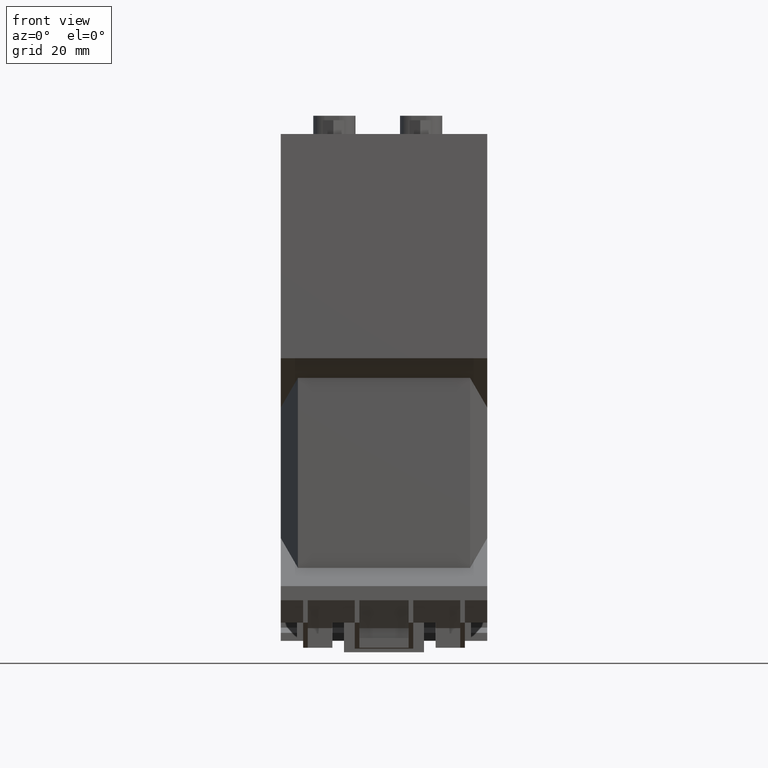
[diagram: clean part render]
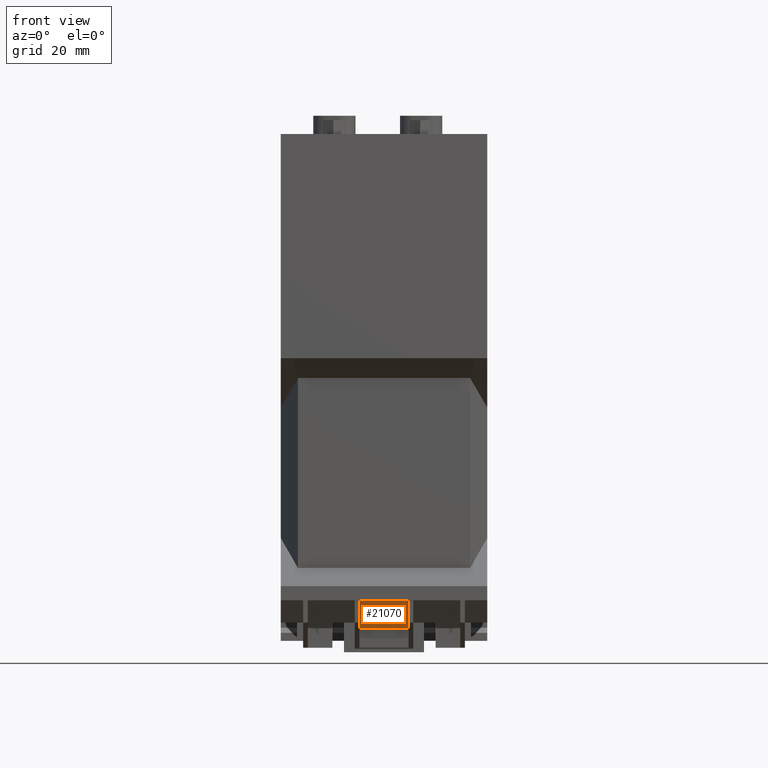
[diagram: same view with one face highlighted and labeled with its STEP entity id]
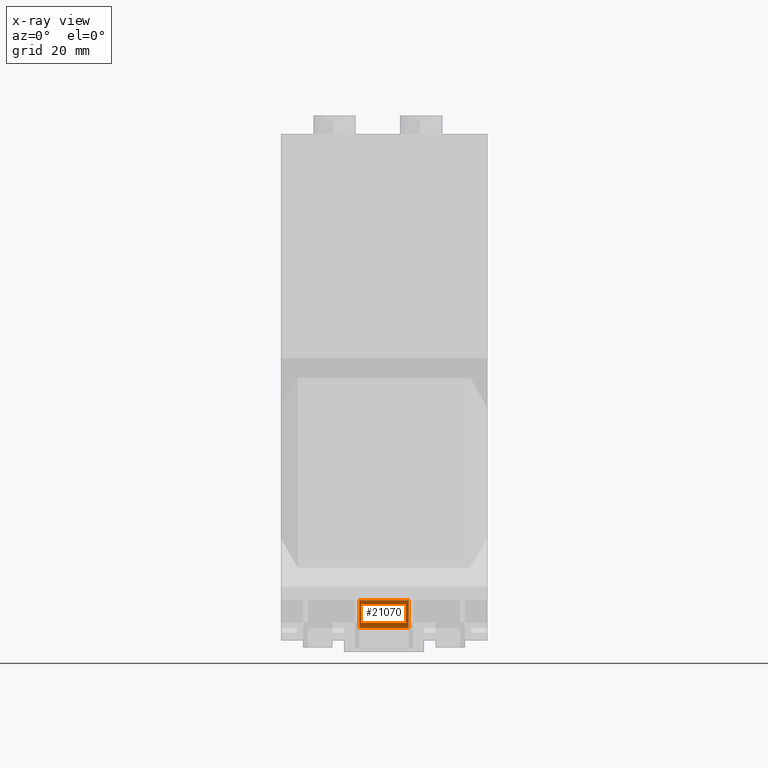
[diagram: x-ray of the same camera — body ghosted, the highlighted face saturated]
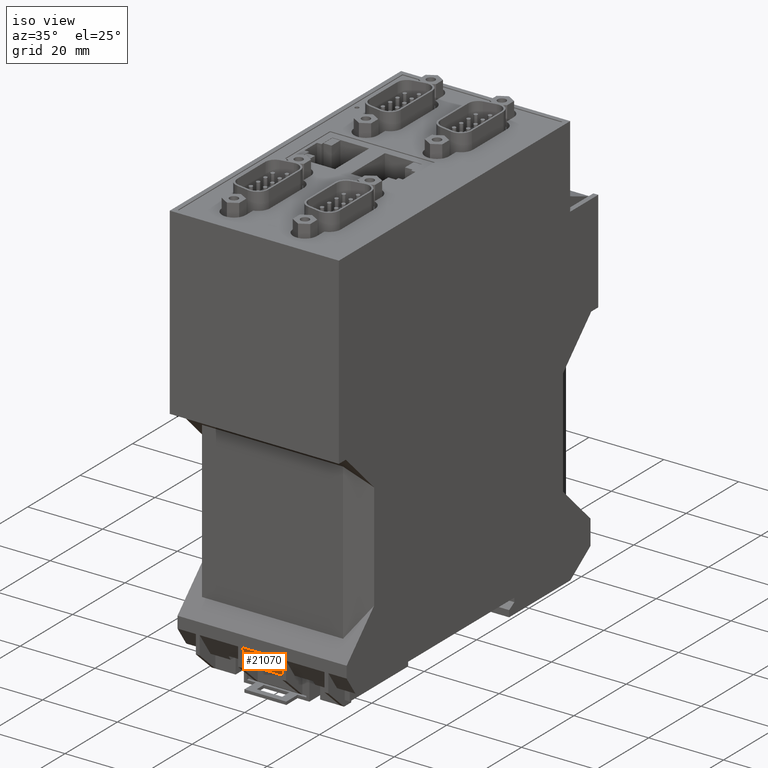
[diagram: same view with one face highlighted and labeled with its STEP entity id]
A machine part, front view. The second image highlights one B-rep face of the part: STEP entity #21070.
The next image is the same camera in x-ray: the body ghosted, the highlighted face saturated — about 0% of this face is hidden behind the body in this view.
A second angle (iso view) of the same face is appended — the face is thin or edge-on in the first view.
In plain terms, the highlighted planar face has unit normal (0, 0.8273, 0.5618).
Its self-contained STEP definition (entity closure, byte-faithful):
#15340=CARTESIAN_POINT('',(-59.9007776120954,-1.20000000000039,16.7));
#15350=VERTEX_POINT('',#15340);
#15500=CARTESIAN_POINT('',(-59.9007776120954,-1.20000000000039,5.9));
#15510=VERTEX_POINT('',#15500);
#15540=CARTESIAN_POINT('',(-59.9007776120955,-1.20000000000038,0.));
#15550=DIRECTION('',(0.,0.,-1.));
#15560=VECTOR('',#15550,1.);
#15570=LINE('',#15540,#15560);
#15580=EDGE_CURVE('',#15350,#15510,#15570,.T.);
#20770=CARTESIAN_POINT('',(-64.7699284064398,5.96995359610978,11.3));
#20780=DIRECTION('',(0.827270657423099,0.561803577210713,-0.));
#20790=DIRECTION('',(-0.561803577210713,0.827270657423099,0.));
#20800=AXIS2_PLACEMENT_3D('',#20770,#20780,#20790);
#20810=PLANE('',#20800);
#20820=CARTESIAN_POINT('',(-77.0142217052413,24.,5.9));
#20830=DIRECTION('',(-0.561803577210713,0.827270657423099,0.));
#20840=VECTOR('',#20830,1.);
#20850=LINE('',#20820,#20840);
#20860=CARTESIAN_POINT('',(-64.0500000000063,4.90983993673297,5.9));
#20870=VERTEX_POINT('',#20860);
#20880=EDGE_CURVE('',#15510,#20870,#20850,.T.);
#20890=ORIENTED_EDGE('',*,*,#20880,.F.);
#20900=CARTESIAN_POINT('',(-64.0500000000063,4.90983993673297,0.));
#20910=DIRECTION('',(0.,0.,-1.));
#20920=VECTOR('',#20910,1.);
#20930=LINE('',#20900,#20920);
#20940=CARTESIAN_POINT('',(-64.0500000000063,4.90983993673296,16.7));
#20950=VERTEX_POINT('',#20940);
#20960=EDGE_CURVE('',#20950,#20870,#20930,.T.);
#20970=ORIENTED_EDGE('',*,*,#20960,.T.);
#20980=CARTESIAN_POINT('',(-77.0142217052413,24.,16.7));
#20990=DIRECTION('',(0.561803577210713,-0.827270657423099,-0.));
#21000=VECTOR('',#20990,1.);
#21010=LINE('',#20980,#21000);
#21020=EDGE_CURVE('',#20950,#15350,#21010,.T.);
#21030=ORIENTED_EDGE('',*,*,#21020,.F.);
#21040=ORIENTED_EDGE('',*,*,#15580,.F.);
#21050=EDGE_LOOP('',(#21040,#21030,#20970,#20890));
#21060=FACE_OUTER_BOUND('',#21050,.T.);
#21070=ADVANCED_FACE('',(#21060),#20810,.F.);